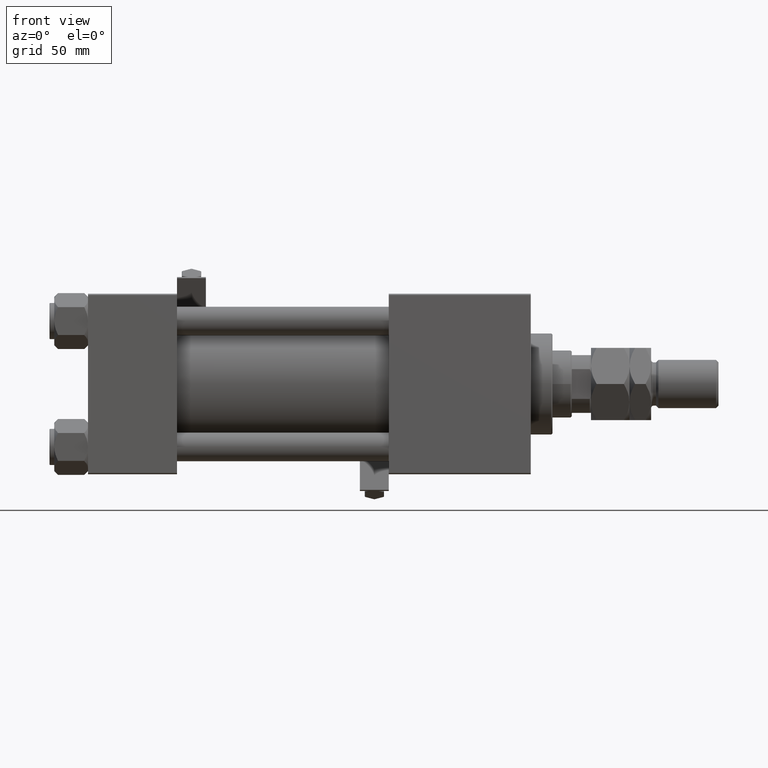
[diagram: clean part render]
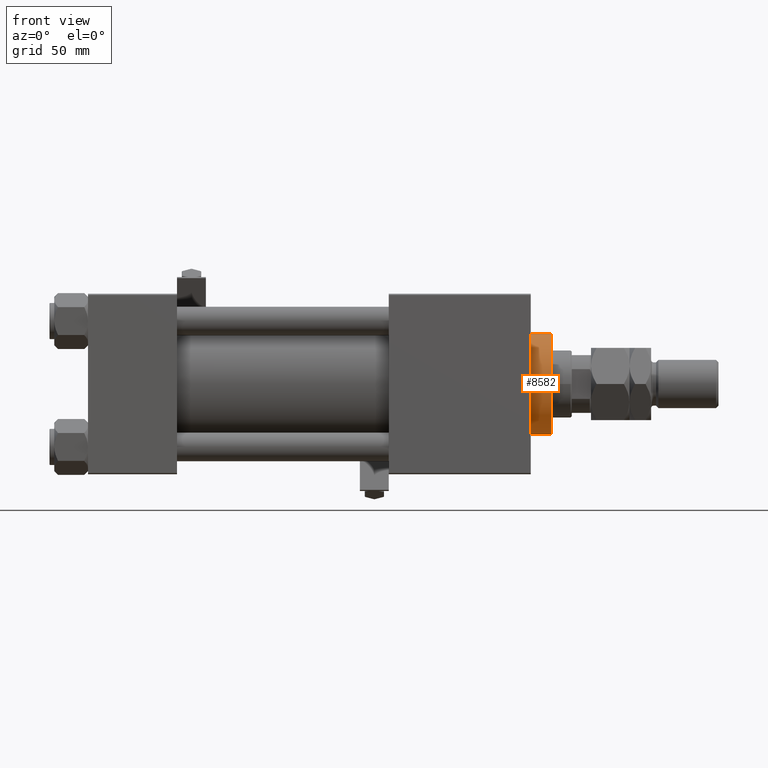
[diagram: same view with one face highlighted and labeled with its STEP entity id]
A machine part, front view. The second image highlights one B-rep face of the part: STEP entity #8582.
In plain terms, the highlighted cylindrical surface (partial cylindrical patch) has radius 21 mm, axis along (-1, -0, -0).
Its self-contained STEP definition (entity closure, byte-faithful):
#1112 = EDGE_CURVE ( 'NONE', #52270, #22015, #39431, .T. ) ;
#4654 = LINE ( 'NONE', #20954, #5650 ) ;
#5487 = AXIS2_PLACEMENT_3D ( 'NONE', #16796, #49402, #26070 ) ;
#5650 = VECTOR ( 'NONE', #12419, 1000.000000000000000 ) ;
#7155 = CIRCLE ( 'NONE', #37011, 21.00000000000000000 ) ;
#8582 = ADVANCED_FACE ( 'NONE', ( #38082 ), #8784, .T. ) ;
#8784 = CYLINDRICAL_SURFACE ( 'NONE', #5487, 21.00000000000000000 ) ;
#8879 = VERTEX_POINT ( 'NONE', #22239 ) ;
#10032 = ORIENTED_EDGE ( 'NONE', *, *, #44298, .T. ) ;
#10231 = VERTEX_POINT ( 'NONE', #50934 ) ;
#12419 = DIRECTION ( 'NONE',  ( -0.000000000000000000, -0.000000000000000000, -1.000000000000000000 ) ) ;
#13697 = CARTESIAN_POINT ( 'NONE',  ( 21.00000000000000000, 2.571758278209441661E-15, 37.69999999999999574 ) ) ;
#15561 = EDGE_LOOP ( 'NONE', ( #37376, #32183, #10032, #51476 ) ) ;
#16796 = CARTESIAN_POINT ( 'NONE',  ( 0.000000000000000000, 0.000000000000000000, 37.69999999999999574 ) ) ;
#18666 = CARTESIAN_POINT ( 'NONE',  ( 21.00000000000000000, 2.571758278209441661E-15, 37.19999999999999574 ) ) ;
#20668 = AXIS2_PLACEMENT_3D ( 'NONE', #25927, #26981, #38198 ) ;
#20954 = CARTESIAN_POINT ( 'NONE',  ( -21.00000000000000000, 0.000000000000000000, 37.69999999999999574 ) ) ;
#21913 = CARTESIAN_POINT ( 'NONE',  ( -21.00000000000000000, 0.000000000000000000, 37.19999999999999574 ) ) ;
#22015 = VERTEX_POINT ( 'NONE', #21913 ) ;
#22239 = CARTESIAN_POINT ( 'NONE',  ( 21.00000000000000000, 2.571758278209441661E-15, 28.69999999999999929 ) ) ;
#22714 = DIRECTION ( 'NONE',  ( 0.000000000000000000, 0.000000000000000000, 1.000000000000000000 ) ) ;
#25927 = CARTESIAN_POINT ( 'NONE',  ( 0.000000000000000000, 0.000000000000000000, 37.19999999999999574 ) ) ;
#26070 = DIRECTION ( 'NONE',  ( -1.000000000000000000, 0.000000000000000000, 0.000000000000000000 ) ) ;
#26981 = DIRECTION ( 'NONE',  ( 0.000000000000000000, 0.000000000000000000, -1.000000000000000000 ) ) ;
#30997 = CARTESIAN_POINT ( 'NONE',  ( 0.000000000000000000, 0.000000000000000000, 28.69999999999999929 ) ) ;
#32183 = ORIENTED_EDGE ( 'NONE', *, *, #1112, .T. ) ;
#35445 = EDGE_CURVE ( 'NONE', #10231, #8879, #7155, .T. ) ;
#37011 = AXIS2_PLACEMENT_3D ( 'NONE', #30997, #22714, #47314 ) ;
#37376 = ORIENTED_EDGE ( 'NONE', *, *, #47212, .F. ) ;
#38082 = FACE_OUTER_BOUND ( 'NONE', #15561, .T. ) ;
#38198 = DIRECTION ( 'NONE',  ( 1.000000000000000000, 0.000000000000000000, 0.000000000000000000 ) ) ;
#39431 = CIRCLE ( 'NONE', #20668, 21.00000000000000000 ) ;
#42790 = DIRECTION ( 'NONE',  ( -0.000000000000000000, -0.000000000000000000, -1.000000000000000000 ) ) ;
#44298 = EDGE_CURVE ( 'NONE', #22015, #10231, #4654, .T. ) ;
#47212 = EDGE_CURVE ( 'NONE', #52270, #8879, #50564, .T. ) ;
#47314 = DIRECTION ( 'NONE',  ( 1.000000000000000000, 0.000000000000000000, 0.000000000000000000 ) ) ;
#49402 = DIRECTION ( 'NONE',  ( -0.000000000000000000, -0.000000000000000000, -1.000000000000000000 ) ) ;
#50564 = LINE ( 'NONE', #13697, #51247 ) ;
#50934 = CARTESIAN_POINT ( 'NONE',  ( -21.00000000000000000, 0.000000000000000000, 28.69999999999999929 ) ) ;
#51247 = VECTOR ( 'NONE', #42790, 1000.000000000000000 ) ;
#51476 = ORIENTED_EDGE ( 'NONE', *, *, #35445, .T. ) ;
#52270 = VERTEX_POINT ( 'NONE', #18666 ) ;